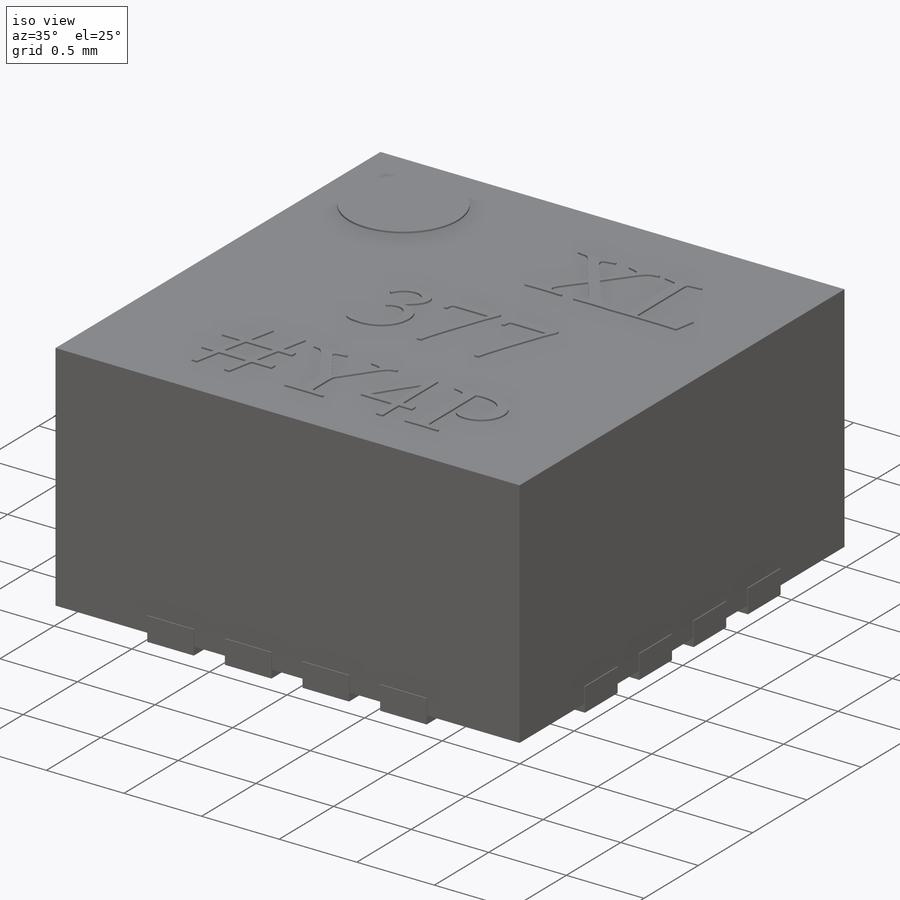
[diagram: iso view]
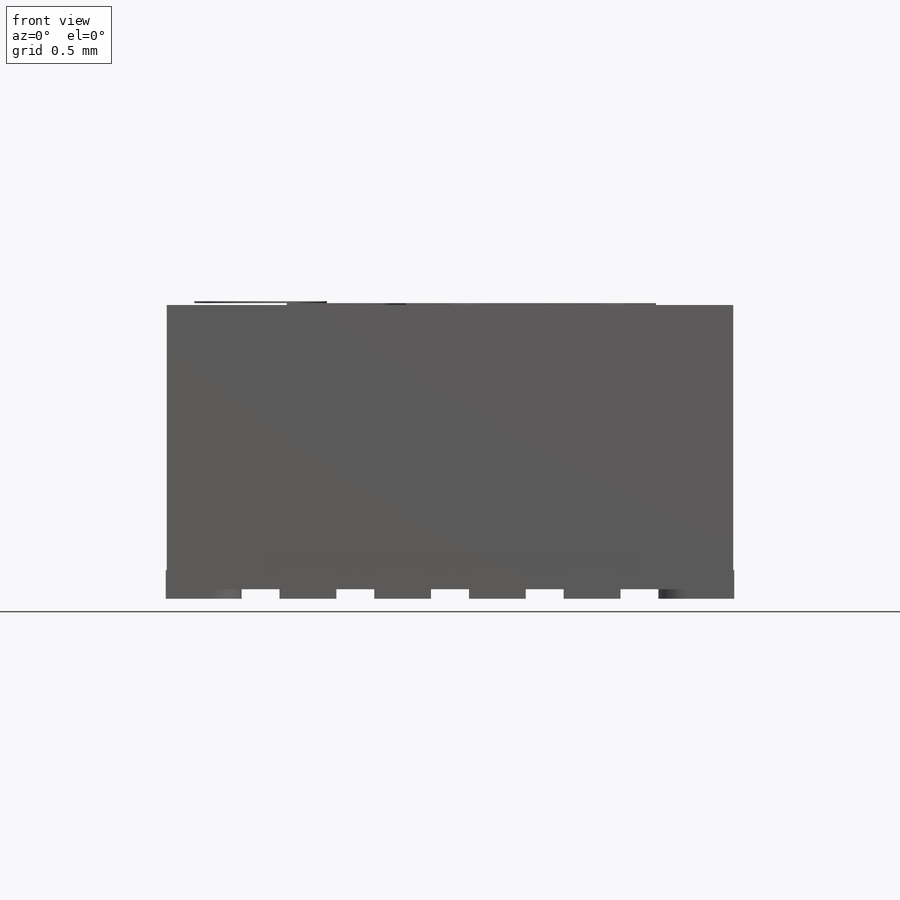
[diagram: front view]
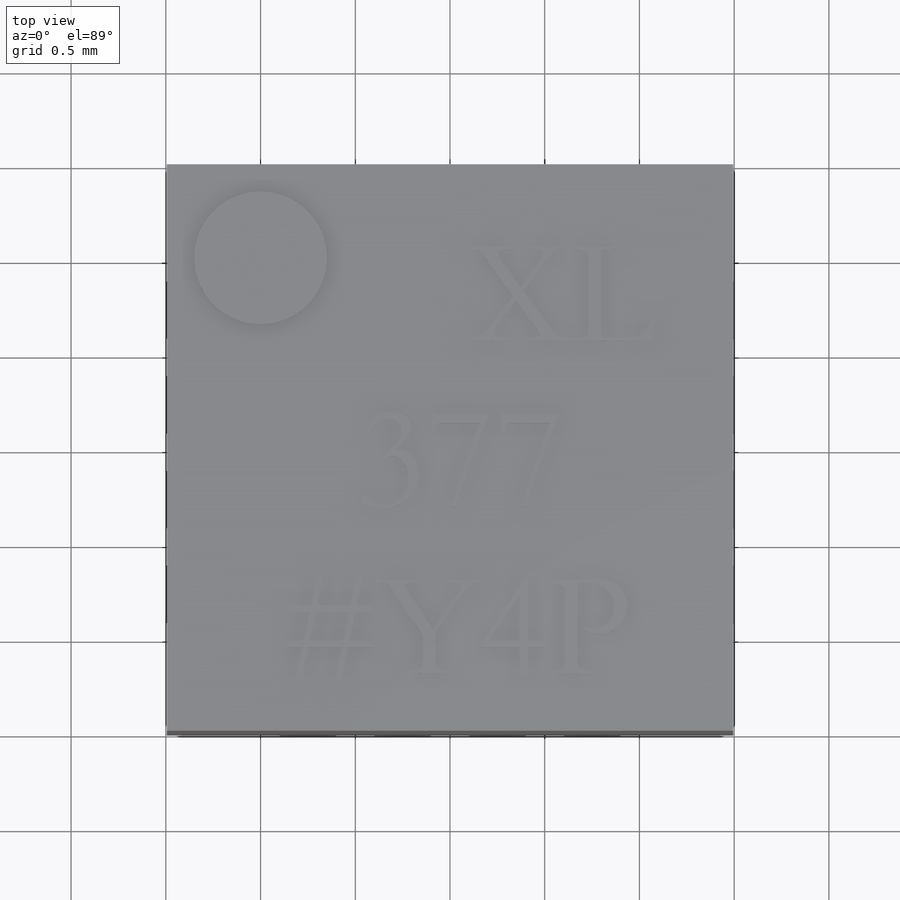
[diagram: top view]
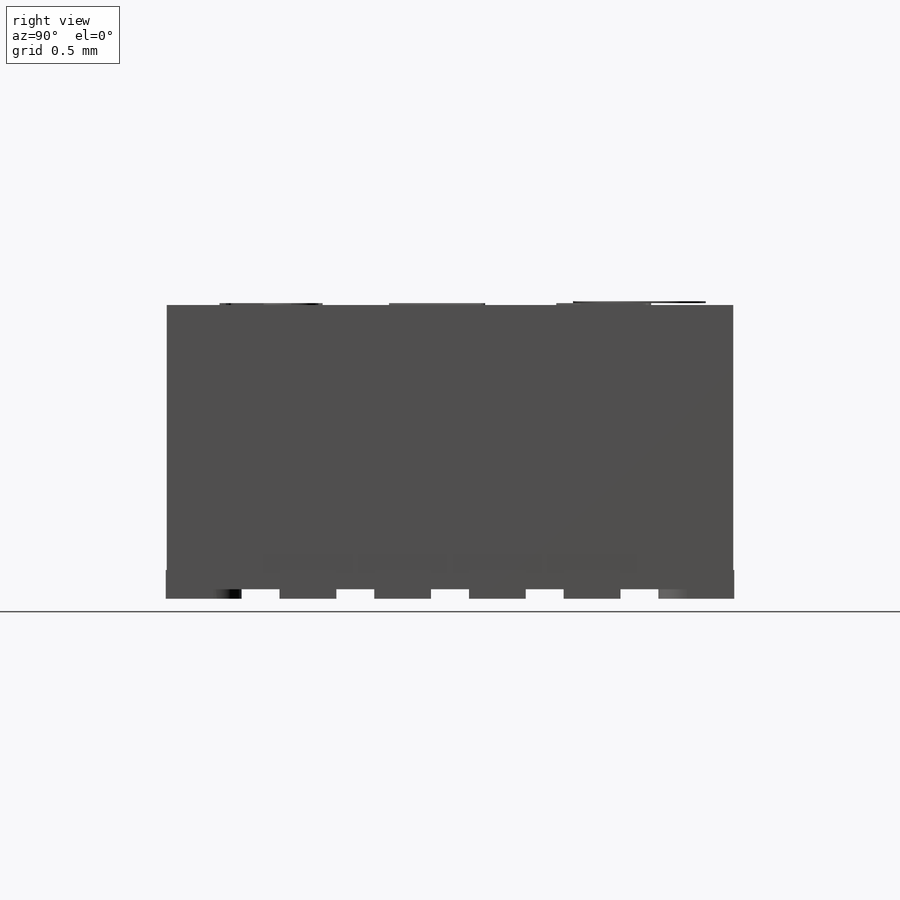
[diagram: right view]
SOLIDWORKS PART (.sldprt)
format: sldprt  version: not decoded by parser v0  size: 592,896 bytes
history: native  units: mm
features: plane x5, sketch x4, extrude x4, material x1 (+8 scaffold rows collapsed)
feature tree (22):
  scaffold x8  (default folders/planes/origin — collapsed)
  material  "材质 <未指定>"
  plane  "前视基准面"
  plane  "上视基准面"
  plane  "右视基准面"
  sketch  "俯视"  dims[D1=2.99mm D2=1.495mm]
  extrude  "凸台-拉伸1"  Depth=1.5mm
  plane  "基准面1"  Offset=1.55mm
  sketch  "焊盘视图"  dims[c1.D18=0.15mm c1.D1=0.4mm c1.D2=0.3mm c2.D1=0.3mm c2.D2=0.3mm c2.D3=0.3mm c2.D4=0.3mm c2.D5=0.3mm c2.D6=0.3mm c2.D7=0.3mm c2.D8=0.3mm c2.D9=0.3mm c2.D10=0.3mm c2.D11=0.3mm c2.D12=0.3mm c2.D13=0.3mm c2.D14=0.3mm c2.D15=0.3mm c2.D16=0.3mm c2.D17=0.25mm c2.D19=1.5mm c2.D20=0.5mm c2.D21=3.0mm c2.D22=3.0mm]
  extrude  "凸台-拉伸2"  Depth=0.152mm
  sketch  "型号"  dims[D1=0.2mm]
  extrude  "凸台-拉伸6"  Depth=0.01mm
  plane  "基准面2"  Offset=0.01mm
  sketch  "草图3"  dims[D1=~0.359265mm]
  extrude  "凸台-拉伸7"  Depth=0.01mm
decode coverage: 8 of 8 modeling features carry decoded parameters
note: ~ marks probable driven/reference dimensions
note: suppression state not decoded; provenance and decode notes live in map.json
